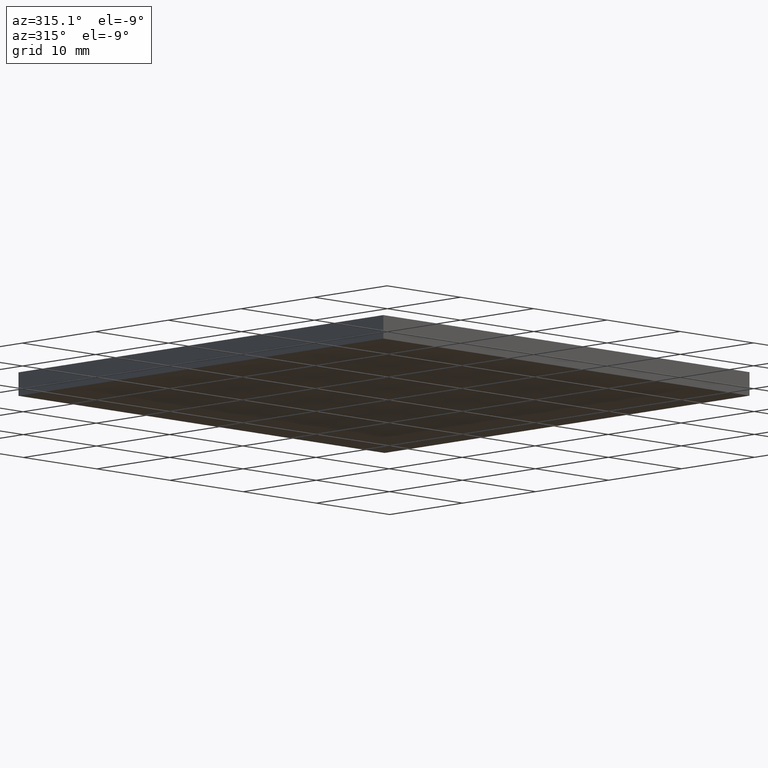
[diagram: clean part render]
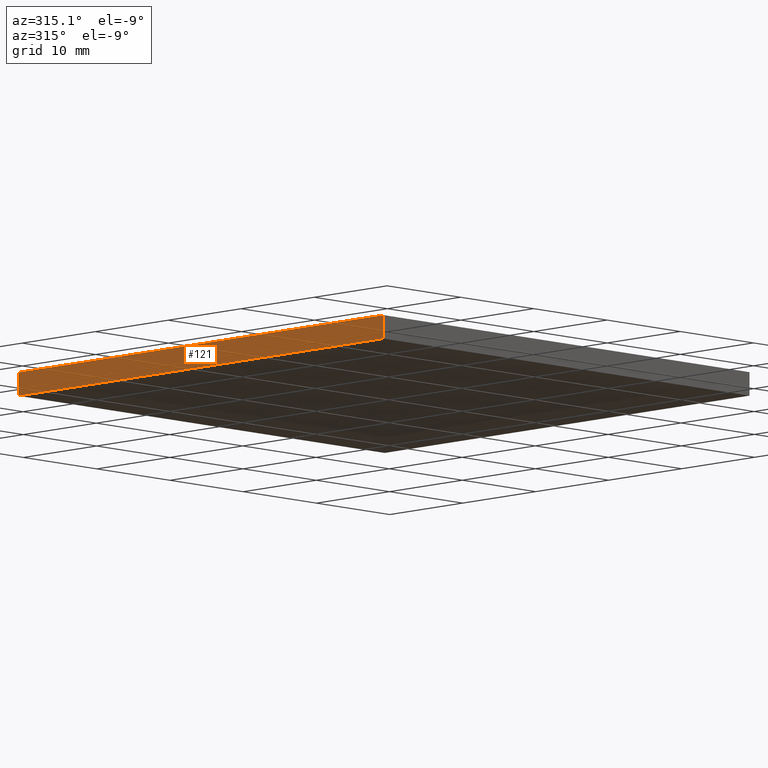
[diagram: same view with one face highlighted and labeled with its STEP entity id]
A machine part, auxiliary view. The second image highlights one B-rep face of the part: STEP entity #121.
In plain terms, the highlighted planar face has unit normal (1, -0, 0).
Its self-contained STEP definition (entity closure, byte-faithful):
#3 = EDGE_CURVE ( 'NONE', #104, #160, #99, .T. ) ;
#30 = LINE ( 'NONE', #113, #118 ) ;
#34 = CARTESIAN_POINT ( 'NONE',  ( 177.4958715517701900, 148.1264836690531900, 2.299999999999999800 ) ) ;
#40 = CARTESIAN_POINT ( 'NONE',  ( 177.4958715517701600, 98.12648366905320100, 2.299999999999999800 ) ) ;
#41 = ORIENTED_EDGE ( 'NONE', *, *, #3, .F. ) ;
#42 = CARTESIAN_POINT ( 'NONE',  ( 177.4958715517701900, 148.1264836690531900, 2.299999999999999800 ) ) ;
#43 = VERTEX_POINT ( 'NONE', #165 ) ;
#46 = DIRECTION ( 'NONE',  ( -5.551115123125785700E-016, -1.000000000000000000, 0.0000000000000000000 ) ) ;
#49 = ORIENTED_EDGE ( 'NONE', *, *, #188, .T. ) ;
#52 = DIRECTION ( 'NONE',  ( -0.0000000000000000000, -0.0000000000000000000, -1.000000000000000000 ) ) ;
#53 = AXIS2_PLACEMENT_3D ( 'NONE', #42, #66, #80 ) ;
#66 = DIRECTION ( 'NONE',  ( 1.000000000000000000, -5.551115123125785700E-016, 0.0000000000000000000 ) ) ;
#68 = PLANE ( 'NONE',  #53 ) ;
#73 = CARTESIAN_POINT ( 'NONE',  ( 177.4958715517701900, 148.1264836690531900, 0.0000000000000000000 ) ) ;
#77 = VECTOR ( 'NONE', #146, 1000.000000000000000 ) ;
#80 = DIRECTION ( 'NONE',  ( 5.551115123125785700E-016, 1.000000000000000000, 0.0000000000000000000 ) ) ;
#84 = EDGE_LOOP ( 'NONE', ( #49, #119, #41, #131 ) ) ;
#92 = VECTOR ( 'NONE', #52, 1000.000000000000000 ) ;
#99 = LINE ( 'NONE', #125, #77 ) ;
#103 = LINE ( 'NONE', #116, #92 ) ;
#104 = VERTEX_POINT ( 'NONE', #34 ) ;
#113 = CARTESIAN_POINT ( 'NONE',  ( 177.4958715517701600, 98.12648366905320100, 2.299999999999999800 ) ) ;
#116 = CARTESIAN_POINT ( 'NONE',  ( 177.4958715517701900, 148.1264836690531900, 2.299999999999999800 ) ) ;
#118 = VECTOR ( 'NONE', #133, 1000.000000000000000 ) ;
#119 = ORIENTED_EDGE ( 'NONE', *, *, #120, .F. ) ;
#120 = EDGE_CURVE ( 'NONE', #160, #43, #30, .T. ) ;
#121 = ADVANCED_FACE ( 'NONE', ( #148 ), #68, .F. ) ;
#125 = CARTESIAN_POINT ( 'NONE',  ( 177.4958715517701900, 148.1264836690531900, 2.299999999999999800 ) ) ;
#131 = ORIENTED_EDGE ( 'NONE', *, *, #145, .T. ) ;
#133 = DIRECTION ( 'NONE',  ( -0.0000000000000000000, -0.0000000000000000000, -1.000000000000000000 ) ) ;
#134 = VECTOR ( 'NONE', #46, 1000.000000000000000 ) ;
#145 = EDGE_CURVE ( 'NONE', #104, #185, #103, .T. ) ;
#146 = DIRECTION ( 'NONE',  ( -5.551115123125785700E-016, -1.000000000000000000, 0.0000000000000000000 ) ) ;
#148 = FACE_OUTER_BOUND ( 'NONE', #84, .T. ) ;
#160 = VERTEX_POINT ( 'NONE', #40 ) ;
#165 = CARTESIAN_POINT ( 'NONE',  ( 177.4958715517701600, 98.12648366905320100, 0.0000000000000000000 ) ) ;
#173 = LINE ( 'NONE', #73, #134 ) ;
#181 = CARTESIAN_POINT ( 'NONE',  ( 177.4958715517701900, 148.1264836690531900, 0.0000000000000000000 ) ) ;
#185 = VERTEX_POINT ( 'NONE', #181 ) ;
#188 = EDGE_CURVE ( 'NONE', #185, #43, #173, .T. ) ;